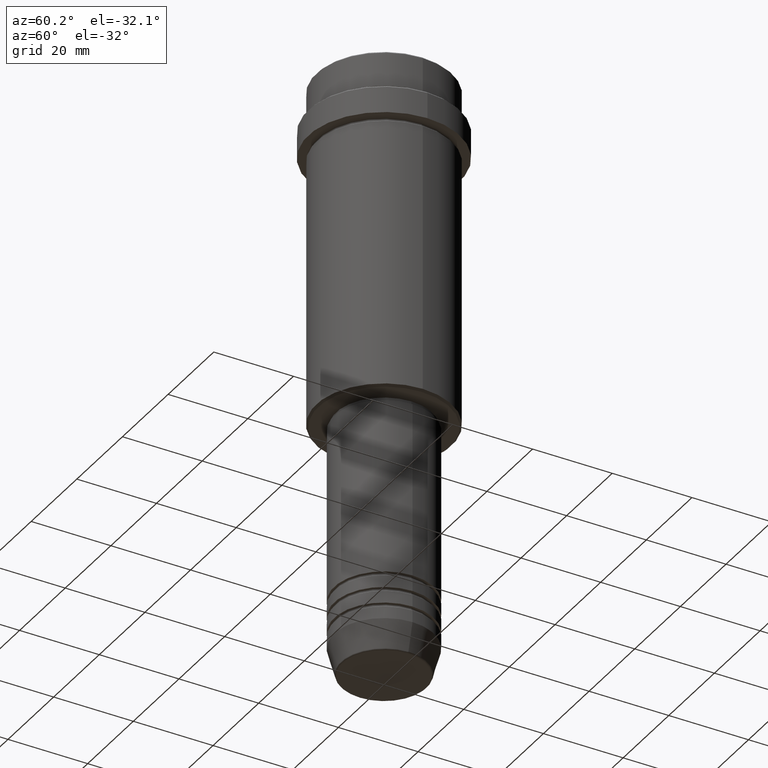
[diagram: clean part render]
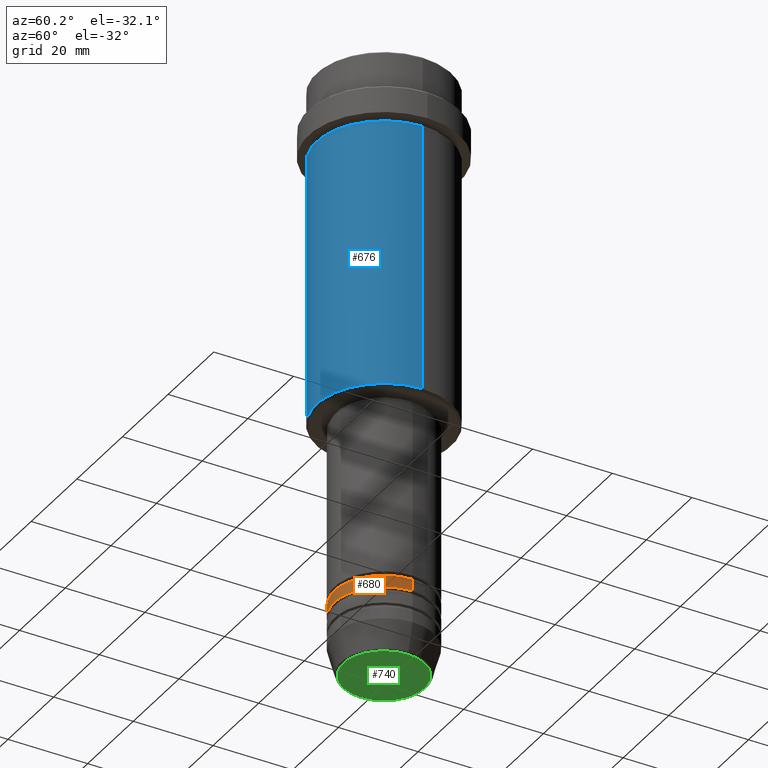
[diagram: same view with three faces highlighted in distinct colors, each labeled with its STEP entity id]
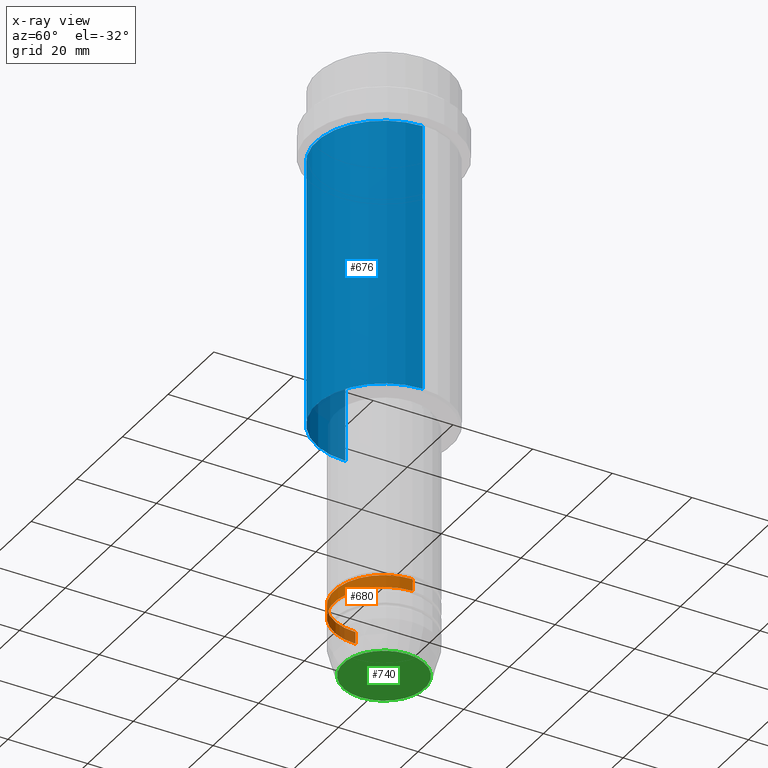
[diagram: x-ray of the same camera — body ghosted, the three highlighted faces saturated]
A machine part, auxiliary view with three faces highlighted in distinct colors.
The next image is the same camera in x-ray (body ghosted, the three faces saturated) — at least one of them is partly hidden behind the body in this view.
Their STEP definitions:

[orange] entity #680 — the highlighted cylindrical surface (partial cylindrical patch) has radius 12.5 mm, axis along (-0, -0, 1).
#151 = CARTESIAN_POINT ( 'NONE',  ( 0.000000000000000000, 0.000000000000000000, -134.9999999999998863 ) ) ;
#200 = EDGE_CURVE ( 'NONE', #1148, #949, #659, .T. ) ;
#236 = CIRCLE ( 'NONE', #1233, 12.50000000000000000 ) ;
#269 = DIRECTION ( 'NONE',  ( 1.000000000000000000, 0.000000000000000000, 0.000000000000000000 ) ) ;
#302 = CARTESIAN_POINT ( 'NONE',  ( -12.50000000000000000, 1.530808498934191521E-15, -131.9999999999998863 ) ) ;
#350 = VERTEX_POINT ( 'NONE', #760 ) ;
#363 = VECTOR ( 'NONE', #542, 1000.000000000000000 ) ;
#418 = AXIS2_PLACEMENT_3D ( 'NONE', #684, #896, #1213 ) ;
#433 = CARTESIAN_POINT ( 'NONE',  ( -12.50000000000000000, 1.530808498934191521E-15, -134.9999999999998863 ) ) ;
#452 = CARTESIAN_POINT ( 'NONE',  ( 0.000000000000000000, 0.000000000000000000, -131.9999999999998863 ) ) ;
#455 = VERTEX_POINT ( 'NONE', #302 ) ;
#460 = AXIS2_PLACEMENT_3D ( 'NONE', #151, #811, #269 ) ;
#542 = DIRECTION ( 'NONE',  ( -0.000000000000000000, -0.000000000000000000, 1.000000000000000000 ) ) ;
#560 = EDGE_CURVE ( 'NONE', #1148, #455, #1122, .T. ) ;
#569 = LINE ( 'NONE', #1190, #1271 ) ;
#575 = CARTESIAN_POINT ( 'NONE',  ( 12.50000000000000000, 0.000000000000000000, -134.9999999999998863 ) ) ;
#655 = DIRECTION ( 'NONE',  ( -0.000000000000000000, -0.000000000000000000, 1.000000000000000000 ) ) ;
#659 = CIRCLE ( 'NONE', #460, 12.50000000000000000 ) ;
#670 = CARTESIAN_POINT ( 'NONE',  ( -12.50000000000000000, 1.530808498934191521E-15, 0.000000000000000000 ) ) ;
#672 = ORIENTED_EDGE ( 'NONE', *, *, #1378, .F. ) ;
#680 = ADVANCED_FACE ( 'NONE', ( #1220 ), #919, .T. ) ;
#684 = CARTESIAN_POINT ( 'NONE',  ( 0.000000000000000000, 0.000000000000000000, 0.000000000000000000 ) ) ;
#760 = CARTESIAN_POINT ( 'NONE',  ( 12.50000000000000000, 0.000000000000000000, -131.9999999999998863 ) ) ;
#790 = ORIENTED_EDGE ( 'NONE', *, *, #1208, .T. ) ;
#811 = DIRECTION ( 'NONE',  ( -0.000000000000000000, -0.000000000000000000, 1.000000000000000000 ) ) ;
#892 = ORIENTED_EDGE ( 'NONE', *, *, #200, .T. ) ;
#896 = DIRECTION ( 'NONE',  ( -0.000000000000000000, -0.000000000000000000, 1.000000000000000000 ) ) ;
#919 = CYLINDRICAL_SURFACE ( 'NONE', #418, 12.50000000000000000 ) ;
#935 = ORIENTED_EDGE ( 'NONE', *, *, #560, .F. ) ;
#938 = DIRECTION ( 'NONE',  ( -0.000000000000000000, -0.000000000000000000, 1.000000000000000000 ) ) ;
#949 = VERTEX_POINT ( 'NONE', #575 ) ;
#984 = EDGE_LOOP ( 'NONE', ( #935, #892, #790, #672 ) ) ;
#1122 = LINE ( 'NONE', #670, #363 ) ;
#1132 = DIRECTION ( 'NONE',  ( 1.000000000000000000, 0.000000000000000000, 0.000000000000000000 ) ) ;
#1148 = VERTEX_POINT ( 'NONE', #433 ) ;
#1190 = CARTESIAN_POINT ( 'NONE',  ( 12.50000000000000000, 0.000000000000000000, 0.000000000000000000 ) ) ;
#1208 = EDGE_CURVE ( 'NONE', #949, #350, #569, .T. ) ;
#1213 = DIRECTION ( 'NONE',  ( 1.000000000000000000, 0.000000000000000000, 0.000000000000000000 ) ) ;
#1220 = FACE_OUTER_BOUND ( 'NONE', #984, .T. ) ;
#1233 = AXIS2_PLACEMENT_3D ( 'NONE', #452, #938, #1132 ) ;
#1271 = VECTOR ( 'NONE', #655, 1000.000000000000000 ) ;
#1378 = EDGE_CURVE ( 'NONE', #455, #350, #236, .T. ) ;

[blue] entity #676 — the highlighted cylindrical surface (partial cylindrical patch) has radius 17 mm, axis along (-0, -0, 1).
#25 = EDGE_CURVE ( 'NONE', #497, #152, #927, .T. ) ;
#28 = FACE_OUTER_BOUND ( 'NONE', #869, .T. ) ;
#31 = CARTESIAN_POINT ( 'NONE',  ( -16.99999999999998579, 2.081899558550499491E-15, -18.00000000000000711 ) ) ;
#44 = AXIS2_PLACEMENT_3D ( 'NONE', #1259, #64, #698 ) ;
#64 = DIRECTION ( 'NONE',  ( -0.000000000000000000, -0.000000000000000000, 1.000000000000000000 ) ) ;
#67 = DIRECTION ( 'NONE',  ( -0.000000000000000000, -0.000000000000000000, 1.000000000000000000 ) ) ;
#152 = VERTEX_POINT ( 'NONE', #671 ) ;
#169 = VECTOR ( 'NONE', #936, 1000.000000000000000 ) ;
#172 = CARTESIAN_POINT ( 'NONE',  ( 16.99999999999999289, 0.000000000000000000, -85.50000000000001421 ) ) ;
#270 = EDGE_CURVE ( 'NONE', #442, #152, #1282, .T. ) ;
#271 = ORIENTED_EDGE ( 'NONE', *, *, #25, .F. ) ;
#303 = CARTESIAN_POINT ( 'NONE',  ( 16.99999999999999289, 0.000000000000000000, 0.000000000000000000 ) ) ;
#304 = ORIENTED_EDGE ( 'NONE', *, *, #1392, .T. ) ;
#442 = VERTEX_POINT ( 'NONE', #172 ) ;
#497 = VERTEX_POINT ( 'NONE', #31 ) ;
#613 = LINE ( 'NONE', #1048, #169 ) ;
#615 = DIRECTION ( 'NONE',  ( -0.000000000000000000, -0.000000000000000000, 1.000000000000000000 ) ) ;
#621 = DIRECTION ( 'NONE',  ( -1.000000000000000000, 0.000000000000000000, 0.000000000000000000 ) ) ;
#623 = CARTESIAN_POINT ( 'NONE',  ( 0.000000000000000000, 0.000000000000000000, -18.00000000000000711 ) ) ;
#656 = VERTEX_POINT ( 'NONE', #666 ) ;
#666 = CARTESIAN_POINT ( 'NONE',  ( -16.99999999999999289, 2.081899558550499885E-15, -85.50000000000001421 ) ) ;
#671 = CARTESIAN_POINT ( 'NONE',  ( 16.99999999999998579, 0.000000000000000000, -18.00000000000000711 ) ) ;
#676 = ADVANCED_FACE ( 'NONE', ( #28 ), #786, .T. ) ;
#698 = DIRECTION ( 'NONE',  ( 1.000000000000000000, 0.000000000000000000, 0.000000000000000000 ) ) ;
#728 = VECTOR ( 'NONE', #916, 1000.000000000000000 ) ;
#786 = CYLINDRICAL_SURFACE ( 'NONE', #44, 16.99999999999999289 ) ;
#869 = EDGE_LOOP ( 'NONE', ( #1177, #304, #1028, #271 ) ) ;
#916 = DIRECTION ( 'NONE',  ( -0.000000000000000000, -0.000000000000000000, 1.000000000000000000 ) ) ;
#925 = EDGE_CURVE ( 'NONE', #656, #497, #613, .T. ) ;
#927 = CIRCLE ( 'NONE', #1291, 16.99999999999998579 ) ;
#936 = DIRECTION ( 'NONE',  ( -0.000000000000000000, -0.000000000000000000, 1.000000000000000000 ) ) ;
#1018 = AXIS2_PLACEMENT_3D ( 'NONE', #1373, #615, #621 ) ;
#1028 = ORIENTED_EDGE ( 'NONE', *, *, #270, .T. ) ;
#1034 = CIRCLE ( 'NONE', #1018, 16.99999999999999289 ) ;
#1048 = CARTESIAN_POINT ( 'NONE',  ( -16.99999999999999289, 2.081899558550499885E-15, 0.000000000000000000 ) ) ;
#1177 = ORIENTED_EDGE ( 'NONE', *, *, #925, .F. ) ;
#1259 = CARTESIAN_POINT ( 'NONE',  ( 0.000000000000000000, 0.000000000000000000, 0.000000000000000000 ) ) ;
#1282 = LINE ( 'NONE', #303, #728 ) ;
#1291 = AXIS2_PLACEMENT_3D ( 'NONE', #623, #67, #1394 ) ;
#1373 = CARTESIAN_POINT ( 'NONE',  ( 0.000000000000000000, 0.000000000000000000, -85.50000000000001421 ) ) ;
#1392 = EDGE_CURVE ( 'NONE', #656, #442, #1034, .T. ) ;
#1394 = DIRECTION ( 'NONE',  ( 1.000000000000000000, 0.000000000000000000, 0.000000000000000000 ) ) ;

[green] entity #740 — the highlighted planar face has unit normal (0, -0, 1).
#13 = VERTEX_POINT ( 'NONE', #1222 ) ;
#100 = AXIS2_PLACEMENT_3D ( 'NONE', #824, #1139, #275 ) ;
#158 = EDGE_CURVE ( 'NONE', #13, #1326, #1083, .T. ) ;
#194 = CARTESIAN_POINT ( 'NONE',  ( -10.24069215899265828, 1.283696036640842178E-15, -150.0000000000000284 ) ) ;
#198 = CARTESIAN_POINT ( 'NONE',  ( 0.000000000000000000, 0.000000000000000000, -150.0000000000000284 ) ) ;
#268 = FACE_OUTER_BOUND ( 'NONE', #917, .T. ) ;
#275 = DIRECTION ( 'NONE',  ( 1.000000000000000000, 0.000000000000000000, 0.000000000000000000 ) ) ;
#358 = EDGE_CURVE ( 'NONE', #1326, #13, #360, .T. ) ;
#360 = CIRCLE ( 'NONE', #1147, 10.24069215899265828 ) ;
#593 = PLANE ( 'NONE',  #831 ) ;
#716 = DIRECTION ( 'NONE',  ( 1.000000000000000000, 0.000000000000000000, 0.000000000000000000 ) ) ;
#740 = ADVANCED_FACE ( 'NONE', ( #268 ), #593, .F. ) ;
#753 = DIRECTION ( 'NONE',  ( 0.000000000000000000, 0.000000000000000000, -1.000000000000000000 ) ) ;
#823 = CARTESIAN_POINT ( 'NONE',  ( 0.000000000000000000, 0.000000000000000000, -150.0000000000000284 ) ) ;
#824 = CARTESIAN_POINT ( 'NONE',  ( 0.000000000000000000, 0.000000000000000000, -150.0000000000000284 ) ) ;
#831 = AXIS2_PLACEMENT_3D ( 'NONE', #823, #933, #716 ) ;
#865 = ORIENTED_EDGE ( 'NONE', *, *, #358, .T. ) ;
#917 = EDGE_LOOP ( 'NONE', ( #1140, #865 ) ) ;
#933 = DIRECTION ( 'NONE',  ( 0.000000000000000000, -0.000000000000000000, 1.000000000000000000 ) ) ;
#1070 = DIRECTION ( 'NONE',  ( 1.000000000000000000, 0.000000000000000000, 0.000000000000000000 ) ) ;
#1083 = CIRCLE ( 'NONE', #100, 10.24069215899265828 ) ;
#1139 = DIRECTION ( 'NONE',  ( 0.000000000000000000, 0.000000000000000000, -1.000000000000000000 ) ) ;
#1140 = ORIENTED_EDGE ( 'NONE', *, *, #158, .T. ) ;
#1147 = AXIS2_PLACEMENT_3D ( 'NONE', #198, #753, #1070 ) ;
#1222 = CARTESIAN_POINT ( 'NONE',  ( 10.24069215899265828, 0.000000000000000000, -150.0000000000000284 ) ) ;
#1326 = VERTEX_POINT ( 'NONE', #194 ) ;